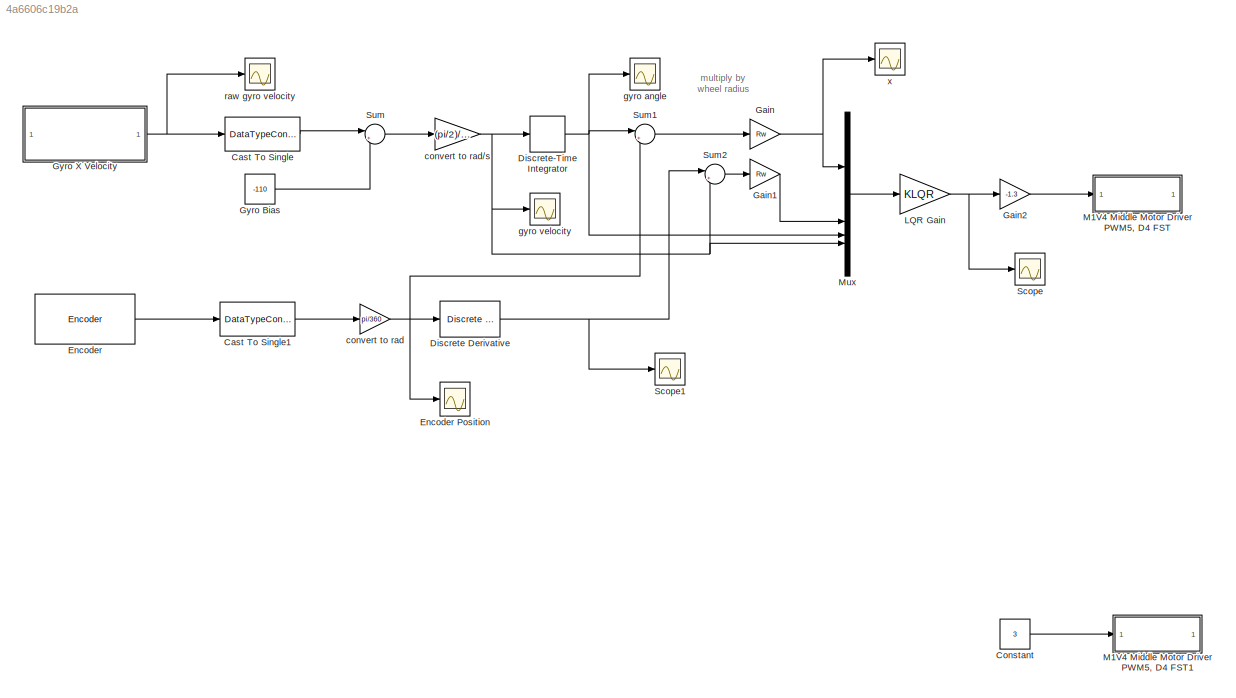
MODEL slx_4a6606c19b2a
KIND model
CONFIG AbsTol = auto
CONFIG EnableMultiTasking = on
CONFIG FixedStep = .003
CONFIG MaxStep = auto
CONFIG MinStep = auto
CONFIG RelTol = 1e-3
CONFIG SampleTimeConstraint = Unconstrained
CONFIG SolverName = FixedStepAuto
CONFIG StartTime = 0.0
CONFIG StopTime = inf
BLOCK [DataTypeConversion] Cast To Single
  OutDataTypeStr = single
  RndMeth = Floor
  SaturateOnIntegerOverflow = off
BLOCK [DataTypeConversion] Cast To Single1
  OutDataTypeStr = single
  RndMeth = Floor
  SaturateOnIntegerOverflow = off
BLOCK [Constant] Constant
  Commented = on
  Value = 3
BLOCK [Reference] Discrete Derivative  REF=simulink/Discrete/Discrete Derivative
  SourceBlock = simulink/Discrete/Discrete Derivative
  SourceType = Discrete Derivative
BLOCK [DiscreteIntegrator] Discrete-Time Integrator
  ICPrevOutput = DiscIntNeverNeededParam
  ICPrevScaledInput = DiscIntNeverNeededParam
  InitialConditionSetting = Auto
  SampleTime = -1
BLOCK [Reference] Encoder  REF=arduinosensorlib/Encoder
  SourceBlock = arduinosensorlib/Encoder
  SourceType = Arduino Rotary Encoder
BLOCK [Scope] Encoder Position
  Floating = off
  NumInputPorts = 1
  ScopeSpecificationString = Simulink.scopes.TimeScopeBlockCfg('CurrentConfiguration', extmgr.ConfigurationSet(extmgr.Configuration('Core','General UI',true),extmgr.Configuration('Core','Source UI',true),extmgr.Configuration('Sources','WiredSimulink',true,'DataLoggingSaveFormat','StructureWithTime','DataLoggingLimitDataPoints',true,'DataLoggingDecimation','1','DataLoggingDecimateData',true,'DataLoggingVariableName','ScopeData...<+1908ch>
BLOCK [Gain] Gain
  Gain = Rw
BLOCK [Gain] Gain1
  Gain = Rw
BLOCK [Gain] Gain2
  Gain = -1.3
BLOCK [Constant] Gyro Bias
  Value = -110
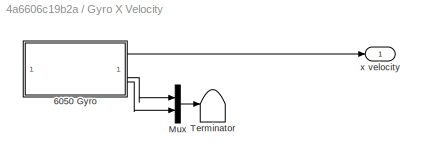
BLOCK [SubSystem] Gyro X Velocity
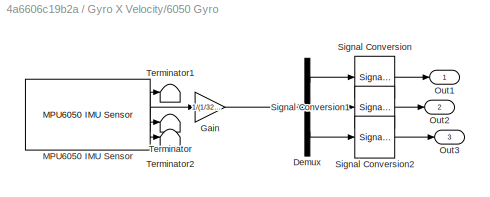
BLOCK [SubSystem] Gyro X Velocity/6050 Gyro
BLOCK [Demux] Gyro X Velocity/6050 Gyro/Demux
  Outputs = 3
BLOCK [Gain] Gyro X Velocity/6050 Gyro/Gain
  Gain = 1/(1/32768*250/180*pi)*2*pi/360/3
BLOCK [Reference] Gyro X Velocity/6050 Gyro/MPU6050 IMU Sensor  REF=arduinosensorlib/MPU6050 IMU Sensor
  SourceBlock = arduinosensorlib/MPU6050 IMU Sensor
  SourceType = MPU6050
BLOCK [Outport] Gyro X Velocity/6050 Gyro/Out1
BLOCK [Outport] Gyro X Velocity/6050 Gyro/Out2
  Port = 2
BLOCK [Outport] Gyro X Velocity/6050 Gyro/Out3
  Port = 3
BLOCK [SignalConversion] Gyro X Velocity/6050 Gyro/Signal Conversion
  OverrideOpt = off
BLOCK [SignalConversion] Gyro X Velocity/6050 Gyro/Signal Conversion1
  OverrideOpt = off
BLOCK [SignalConversion] Gyro X Velocity/6050 Gyro/Signal Conversion2
  OverrideOpt = off
BLOCK [Terminator] Gyro X Velocity/6050 Gyro/Terminator
BLOCK [Terminator] Gyro X Velocity/6050 Gyro/Terminator1
BLOCK [Terminator] Gyro X Velocity/6050 Gyro/Terminator2
BLOCK [Mux] Gyro X Velocity/Mux
  DisplayOption = bar
  Inputs = 2
BLOCK [Terminator] Gyro X Velocity/Terminator
BLOCK [Outport] Gyro X Velocity/x velocity
BLOCK [Gain] LQR Gain
  Gain = KLQR
  Multiplication = Matrix(K*u)
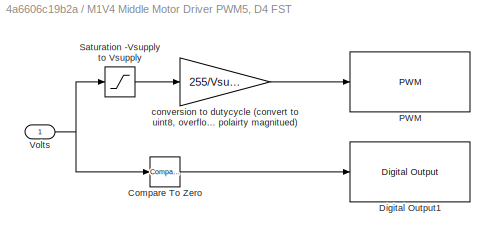
BLOCK [SubSystem] M1V4  Middle Motor Driver PWM5, D4 FST
BLOCK [Reference] M1V4  Middle Motor Driver PWM5, D4 FST/Compare To Zero  REF=simulink/Logic and Bit
Operations/Compare
To Zero
  SourceBlock = simulink/Logic and Bit\nOperations/Compare\nTo Zero
  SourceType = Compare To Zero
BLOCK [Reference] M1V4  Middle Motor Driver PWM5, D4 FST/Digital Output1  REF=arduinolib/Digital Output
  SourceBlock = arduinolib/Digital Output
  SourceType = Arduino Digital Output
BLOCK [Reference] M1V4  Middle Motor Driver PWM5, D4 FST/PWM  REF=arduinolib/PWM
  SourceBlock = arduinolib/PWM
  SourceType = Arduino PWM
BLOCK [Saturate] M1V4  Middle Motor Driver PWM5, D4 FST/Saturation -Vsupply to Vsupply
  LowerLimit = -Vsupply
  OutDataTypeStr = single
  UpperLimit = Vsupply
BLOCK [Inport] M1V4  Middle Motor Driver PWM5, D4 FST/Volts
BLOCK [Gain] M1V4  Middle Motor Driver PWM5, D4 FST/conversion to dutycycle (convert to uint8, overflow will provide reverse polairty magnitued)
  Gain = 255/Vsupply
  OutDataTypeStr = uint8
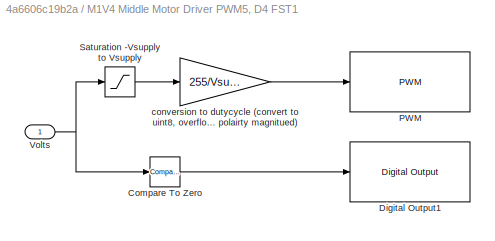
BLOCK [SubSystem] M1V4  Middle Motor Driver PWM5, D4 FST1
  Commented = on
BLOCK [Reference] M1V4  Middle Motor Driver PWM5, D4 FST1/Compare To Zero  REF=simulink/Logic and Bit
Operations/Compare
To Zero
  SourceBlock = simulink/Logic and Bit\nOperations/Compare\nTo Zero
  SourceType = Compare To Zero
BLOCK [Reference] M1V4  Middle Motor Driver PWM5, D4 FST1/Digital Output1  REF=arduinolib/Digital Output
  SourceBlock = arduinolib/Digital Output
  SourceType = Arduino Digital Output
BLOCK [Reference] M1V4  Middle Motor Driver PWM5, D4 FST1/PWM  REF=arduinolib/PWM
  SourceBlock = arduinolib/PWM
  SourceType = Arduino PWM
BLOCK [Saturate] M1V4  Middle Motor Driver PWM5, D4 FST1/Saturation -Vsupply to Vsupply
  LowerLimit = -Vsupply
  OutDataTypeStr = single
  UpperLimit = Vsupply
BLOCK [Inport] M1V4  Middle Motor Driver PWM5, D4 FST1/Volts
BLOCK [Gain] M1V4  Middle Motor Driver PWM5, D4 FST1/conversion to dutycycle (convert to uint8, overflow will provide reverse polairty magnitued)
  Gain = 255/Vsupply
  OutDataTypeStr = uint8
BLOCK [Mux] Mux
  DisplayOption = bar
BLOCK [Scope] Scope
  Floating = off
  NumInputPorts = 1
  ScopeSpecificationString = Simulink.scopes.TimeScopeBlockCfg('CurrentConfiguration', extmgr.ConfigurationSet(extmgr.Configuration('Core','General UI',true),extmgr.Configuration('Core','Source UI',true),extmgr.Configuration('Sources','WiredSimulink',true,'DataLoggingVariableName','ScopeData1'),extmgr.Configuration('Visuals','Time Domain',true,'SerializedDisplays',{struct('MinYLimReal','-32.3209','MaxYLimReal','59.76173','YLa...<+1516ch>
BLOCK [Scope] Scope1
  Floating = off
  NumInputPorts = 1
  ScopeSpecificationString = Simulink.scopes.TimeScopeBlockCfg('CurrentConfiguration', extmgr.ConfigurationSet(extmgr.Configuration('Core','General UI',true),extmgr.Configuration('Core','Source UI',true),extmgr.Configuration('Sources','WiredSimulink',true,'DataLoggingVariableName','ScopeData2'),extmgr.Configuration('Visuals','Time Domain',true,'SerializedDisplays',{struct('MinYLimReal','-33.08857','MaxYLimReal','35.99747','YL...<+1528ch>
BLOCK [Sum] Sum
  Inputs = |+-
BLOCK [Sum] Sum1
  Inputs = |++
BLOCK [Sum] Sum2
  Inputs = |++
BLOCK [Gain] convert to rad
  Gain = pi/360
BLOCK [Gain] convert to rad//s
  Gain = (pi/2)/4210
BLOCK [Scope] gyro angle
  Floating = off
  NumInputPorts = 1
  ScopeSpecificationString = Simulink.scopes.TimeScopeBlockCfg('CurrentConfiguration', extmgr.ConfigurationSet(extmgr.Configuration('Core','General UI',true),extmgr.Configuration('Core','Source UI',true),extmgr.Configuration('Sources','WiredSimulink',true,'DataLoggingVariableName','ScopeData2'),extmgr.Configuration('Visuals','Time Domain',true,'SerializedDisplays',{struct('MinYLimReal','2.40399','MaxYLimReal','2.4704','YLabel...<+1545ch>
BLOCK [Scope] gyro velocity
  Floating = off
  NumInputPorts = 1
  ScopeSpecificationString = Simulink.scopes.TimeScopeBlockCfg('CurrentConfiguration', extmgr.ConfigurationSet(extmgr.Configuration('Core','General UI',true),extmgr.Configuration('Core','Source UI',true),extmgr.Configuration('Sources','WiredSimulink',true,'DataLoggingVariableName','ScopeData2'),extmgr.Configuration('Visuals','Time Domain',true,'SerializedDisplays',{struct('MinYLimReal','-4.09463','MaxYLimReal','4.51413','YLab...<+1539ch>
BLOCK [Scope] raw gyro velocity
  Floating = off
  NumInputPorts = 1
  ScopeSpecificationString = Simulink.scopes.TimeScopeBlockCfg('CurrentConfiguration', extmgr.ConfigurationSet(extmgr.Configuration('Core','General UI',true),extmgr.Configuration('Core','Source UI',true),extmgr.Configuration('Sources','WiredSimulink',true,'DataLoggingVariableName','ScopeData1'),extmgr.Configuration('Visuals','Time Domain',true,'SerializedDisplays',{struct('MinYLimReal','-7393.1665','MaxYLimReal','5981.8335','...<+1555ch>
BLOCK [Scope] x
  Floating = off
  NumInputPorts = 1
  ScopeSpecificationString = Simulink.scopes.TimeScopeBlockCfg('CurrentConfiguration', extmgr.ConfigurationSet(extmgr.Configuration('Core','General UI',true),extmgr.Configuration('Core','Source UI',true),extmgr.Configuration('Sources','WiredSimulink',true,'DataLoggingVariableName','ScopeData1'),extmgr.Configuration('Visuals','Time Domain',true,'SerializedDisplays',{struct('MinYLimReal','-0.07399','MaxYLimReal','0.28241','YLab...<+1507ch>
ANNOTATION (root): multiply by wheel radius
LINE Cast To Single1:1 -> convert to rad:1
LINE Cast To Single:1 -> Sum:1
LINE Constant:1 -> M1V4  Middle Motor Driver PWM5, D4 FST1:1
NET Discrete Derivative:1 -> Scope1:1, Sum2:1
NET Discrete-Time Integrator:1 -> Mux:3, Sum1:1, gyro angle:1
LINE Encoder:1 -> Cast To Single1:1
LINE Gain1:1 -> Mux:2
LINE Gain2:1 -> M1V4  Middle Motor Driver PWM5, D4 FST:1
NET Gain:1 -> Mux:1, x:1
LINE Gyro Bias:1 -> Sum:2
LINE Gyro X Velocity/6050 Gyro/Demux:1 -> Gyro X Velocity/6050 Gyro/Signal Conversion:1
LINE Gyro X Velocity/6050 Gyro/Demux:2 -> Gyro X Velocity/6050 Gyro/Signal Conversion1:1
LINE Gyro X Velocity/6050 Gyro/Demux:3 -> Gyro X Velocity/6050 Gyro/Signal Conversion2:1
LINE Gyro X Velocity/6050 Gyro/Gain:1 -> Gyro X Velocity/6050 Gyro/Demux:1
LINE Gyro X Velocity/6050 Gyro/MPU6050 IMU Sensor:1 -> Gyro X Velocity/6050 Gyro/Terminator1:1
LINE Gyro X Velocity/6050 Gyro/MPU6050 IMU Sensor:2 -> Gyro X Velocity/6050 Gyro/Gain:1
LINE Gyro X Velocity/6050 Gyro/MPU6050 IMU Sensor:3 -> Gyro X Velocity/6050 Gyro/Terminator:1
LINE Gyro X Velocity/6050 Gyro/MPU6050 IMU Sensor:4 -> Gyro X Velocity/6050 Gyro/Terminator2:1
LINE Gyro X Velocity/6050 Gyro/Signal Conversion1:1 -> Gyro X Velocity/6050 Gyro/Out2:1
LINE Gyro X Velocity/6050 Gyro/Signal Conversion2:1 -> Gyro X Velocity/6050 Gyro/Out3:1
LINE Gyro X Velocity/6050 Gyro/Signal Conversion:1 -> Gyro X Velocity/6050 Gyro/Out1:1
LINE Gyro X Velocity/6050 Gyro:1 -> Gyro X Velocity/x velocity:1
LINE Gyro X Velocity/6050 Gyro:2 -> Gyro X Velocity/Mux:1
LINE Gyro X Velocity/6050 Gyro:3 -> Gyro X Velocity/Mux:2
LINE Gyro X Velocity/Mux:1 -> Gyro X Velocity/Terminator:1
NET Gyro X Velocity:1 -> Cast To Single:1, raw gyro velocity:1
NET LQR Gain:1 -> Gain2:1, Scope:1
LINE M1V4  Middle Motor Driver PWM5, D4 FST/Compare To Zero:1 -> M1V4  Middle Motor Driver PWM5, D4 FST/Digital Output1:1
LINE M1V4  Middle Motor Driver PWM5, D4 FST/Saturation -Vsupply to Vsupply:1 -> M1V4  Middle Motor Driver PWM5, D4 FST/conversion to dutycycle (convert to uint8, overflow will provide reverse polairty magnitued):1
NET M1V4  Middle Motor Driver PWM5, D4 FST/Volts:1 -> M1V4  Middle Motor Driver PWM5, D4 FST/Compare To Zero:1, M1V4  Middle Motor Driver PWM5, D4 FST/Saturation -Vsupply to Vsupply:1
LINE M1V4  Middle Motor Driver PWM5, D4 FST/conversion to dutycycle (convert to uint8, overflow will provide reverse polairty magnitued):1 -> M1V4  Middle Motor Driver PWM5, D4 FST/PWM:1
LINE M1V4  Middle Motor Driver PWM5, D4 FST1/Compare To Zero:1 -> M1V4  Middle Motor Driver PWM5, D4 FST1/Digital Output1:1
LINE M1V4  Middle Motor Driver PWM5, D4 FST1/Saturation -Vsupply to Vsupply:1 -> M1V4  Middle Motor Driver PWM5, D4 FST1/conversion to dutycycle (convert to uint8, overflow will provide reverse polairty magnitued):1
NET M1V4  Middle Motor Driver PWM5, D4 FST1/Volts:1 -> M1V4  Middle Motor Driver PWM5, D4 FST1/Compare To Zero:1, M1V4  Middle Motor Driver PWM5, D4 FST1/Saturation -Vsupply to Vsupply:1
LINE M1V4  Middle Motor Driver PWM5, D4 FST1/conversion to dutycycle (convert to uint8, overflow will provide reverse polairty magnitued):1 -> M1V4  Middle Motor Driver PWM5, D4 FST1/PWM:1
LINE Mux:1 -> LQR Gain:1
LINE Sum1:1 -> Gain:1
LINE Sum2:1 -> Gain1:1
LINE Sum:1 -> convert to rad//s:1
NET convert to rad//s:1 -> Discrete-Time Integrator:1, Mux:4, Sum2:2, gyro velocity:1
NET convert to rad:1 -> Discrete Derivative:1, Encoder Position:1, Sum1:2
note: NET lines group one-source signal fan-out (src -> all destinations, sorted); 1:1 wires keep LINE
